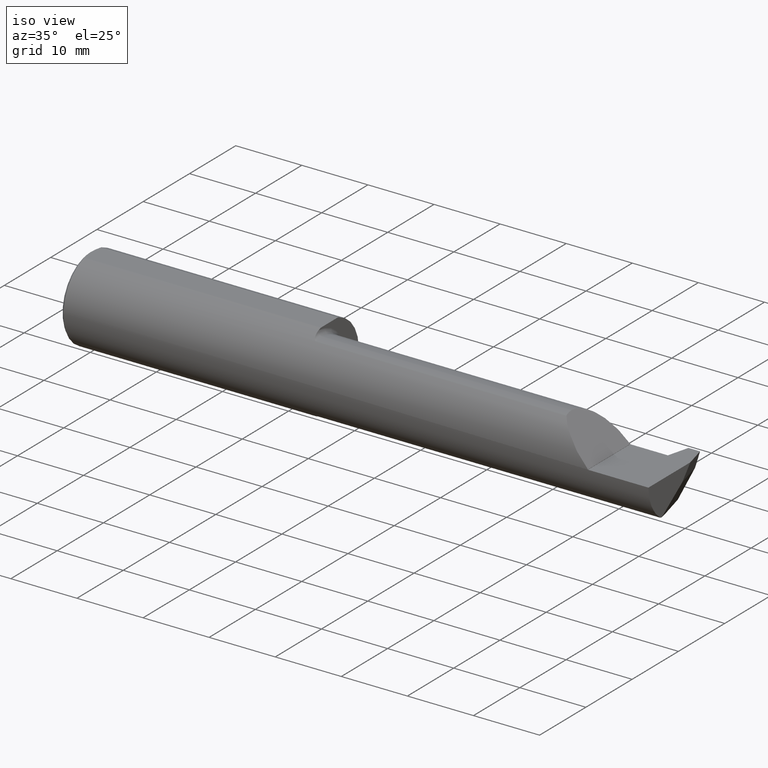
[diagram: clean part render]
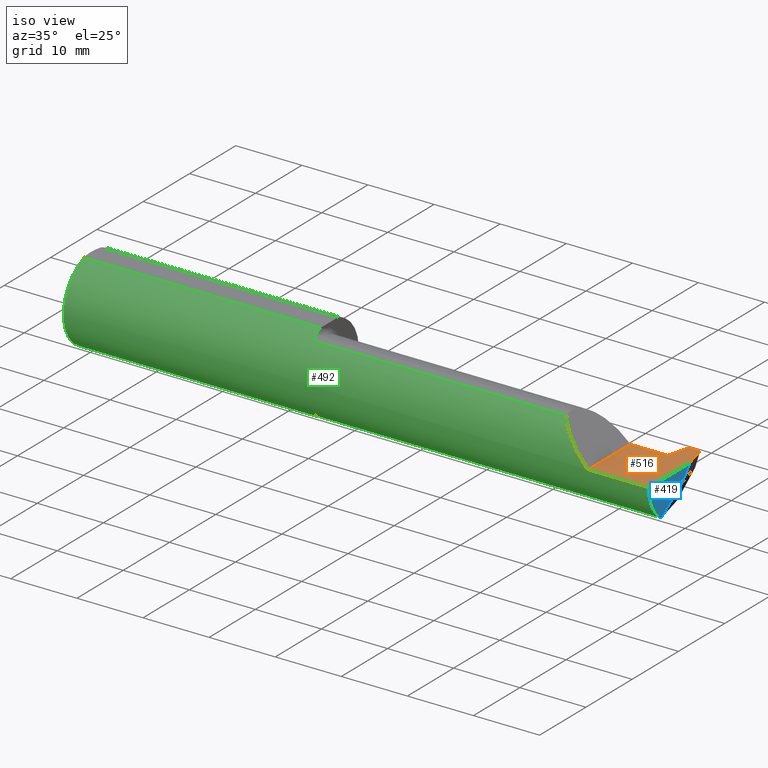
[diagram: same view with three faces highlighted in distinct colors, each labeled with its STEP entity id]
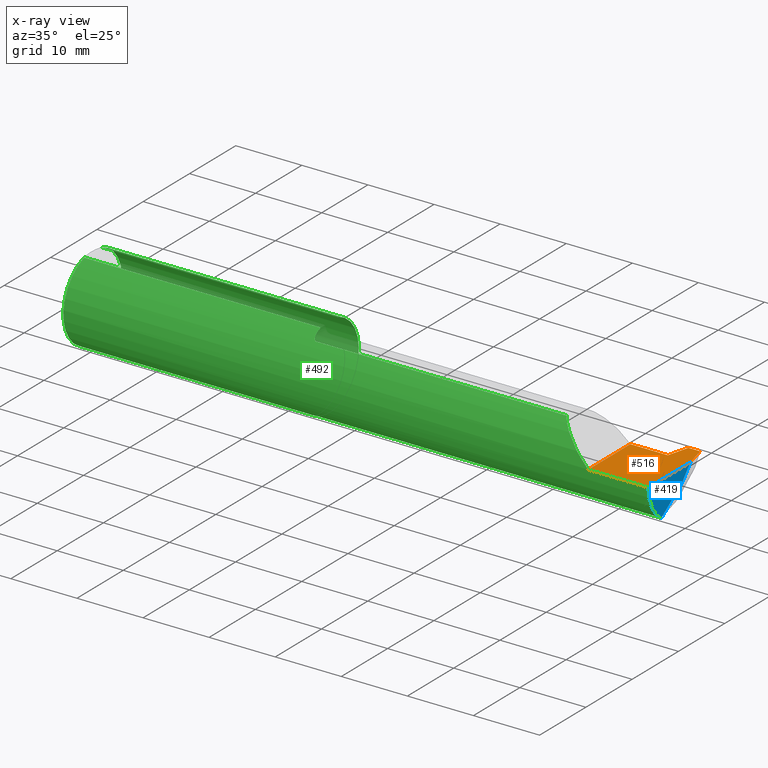
[diagram: x-ray of the same camera — body ghosted, the three highlighted faces saturated]
A machine part, iso view with three faces highlighted in distinct colors.
The next image is the same camera in x-ray (body ghosted, the three faces saturated) — at least one of them is partly hidden behind the body in this view.
Their STEP definitions:

[orange] entity #516 — the highlighted planar face has unit normal (-0, 0, -1).
#12 = PLANE ( 'NONE',  #576 ) ;
#37 = EDGE_LOOP ( 'NONE', ( #648, #475, #241, #307, #202, #245, #60, #941 ) ) ;
#42 = CARTESIAN_POINT ( 'NONE',  ( 3.139999999999999680, 0.2999999999999999889, -6.123031769111886291E-17 ) ) ;
#48 = VECTOR ( 'NONE', #220, 39.37007874015748143 ) ;
#52 = CARTESIAN_POINT ( 'NONE',  ( 3.397000000000001130, 0.2381499999999843742, -6.123031769111886291E-17 ) ) ;
#60 = ORIENTED_EDGE ( 'NONE', *, *, #553, .T. ) ;
#66 = EDGE_CURVE ( 'NONE', #687, #92, #501, .T. ) ;
#69 = DIRECTION ( 'NONE',  ( 1.000000000000000000, -8.537024980200913523E-16, -0.000000000000000000 ) ) ;
#75 = CARTESIAN_POINT ( 'NONE',  ( 1.424999999999999600, 0.1101499999999999979, -6.123031769111886291E-17 ) ) ;
#84 = VECTOR ( 'NONE', #637, 39.37007874015748143 ) ;
#89 = CARTESIAN_POINT ( 'NONE',  ( 3.500000000000000000, 0.2999999999999999889, -6.123031769111886291E-17 ) ) ;
#92 = VERTEX_POINT ( 'NONE', #868 ) ;
#106 = EDGE_CURVE ( 'NONE', #744, #372, #293, .T. ) ;
#129 = EDGE_CURVE ( 'NONE', #791, #252, #708, .T. ) ;
#150 = CARTESIAN_POINT ( 'NONE',  ( 3.139999999999999680, 0.2999999999999999889, -6.123031769111886291E-17 ) ) ;
#176 = CARTESIAN_POINT ( 'NONE',  ( 3.500000000000000000, -0.2498499999999999055, -6.123031769111886291E-17 ) ) ;
#186 = DIRECTION ( 'NONE',  ( -0.000000000000000000, 0.000000000000000000, -1.000000000000000000 ) ) ;
#202 = ORIENTED_EDGE ( 'NONE', *, *, #66, .F. ) ;
#220 = DIRECTION ( 'NONE',  ( 1.000000000000000000, 0.000000000000000000, 0.000000000000000000 ) ) ;
#228 = VERTEX_POINT ( 'NONE', #52 ) ;
#241 = ORIENTED_EDGE ( 'NONE', *, *, #106, .F. ) ;
#245 = ORIENTED_EDGE ( 'NONE', *, *, #717, .F. ) ;
#252 = VERTEX_POINT ( 'NONE', #692 ) ;
#254 = DIRECTION ( 'NONE',  ( -0.000000000000000000, 1.000000000000000000, -0.000000000000000000 ) ) ;
#267 = CARTESIAN_POINT ( 'NONE',  ( 3.139999999999999680, -0.2498499999999999610, -6.123031769111885058E-17 ) ) ;
#288 = CARTESIAN_POINT ( 'NONE',  ( 3.465999999999998860, 0.2381499999999832640, 0.000000000000000000 ) ) ;
#293 = LINE ( 'NONE', #584, #830 ) ;
#307 = ORIENTED_EDGE ( 'NONE', *, *, #363, .F. ) ;
#321 = VECTOR ( 'NONE', #254, 39.37007874015748143 ) ;
#356 = EDGE_CURVE ( 'NONE', #791, #228, #792, .T. ) ;
#363 = EDGE_CURVE ( 'NONE', #92, #744, #796, .T. ) ;
#372 = VERTEX_POINT ( 'NONE', #932 ) ;
#384 = VECTOR ( 'NONE', #931, 39.37007874015748143 ) ;
#393 = DIRECTION ( 'NONE',  ( -1.000000000000000000, 0.000000000000000000, 0.000000000000000000 ) ) ;
#434 = CARTESIAN_POINT ( 'NONE',  ( 3.343896949202450841, 0.1101499999999999840, 0.000000000000000000 ) ) ;
#447 = VECTOR ( 'NONE', #477, 39.37007874015748143 ) ;
#475 = ORIENTED_EDGE ( 'NONE', *, *, #647, .F. ) ;
#477 = DIRECTION ( 'NONE',  ( 0.2503800040544414962, 0.9681476403781077433, -0.000000000000000000 ) ) ;
#497 = CARTESIAN_POINT ( 'NONE',  ( 3.139999999999998792, 0.2381499999999887318, -6.123031769111886291E-17 ) ) ;
#501 = LINE ( 'NONE', #150, #384 ) ;
#516 = ADVANCED_FACE ( 'NONE', ( #896 ), #12, .F. ) ;
#553 = EDGE_CURVE ( 'NONE', #579, #252, #904, .T. ) ;
#558 = LINE ( 'NONE', #766, #447 ) ;
#563 = VECTOR ( 'NONE', #788, 39.37007874015748143 ) ;
#567 = DIRECTION ( 'NONE',  ( 0.2503800040544367778, -0.9681476403781088536, 0.000000000000000000 ) ) ;
#576 = AXIS2_PLACEMENT_3D ( 'NONE', #42, #186, #393 ) ;
#579 = VERTEX_POINT ( 'NONE', #176 ) ;
#584 = CARTESIAN_POINT ( 'NONE',  ( 3.363896949202450859, 0.1101499999999999702, 0.000000000000000000 ) ) ;
#631 = CARTESIAN_POINT ( 'NONE',  ( 3.462896588987724122, 0.2501499999999999835, 0.000000000000000000 ) ) ;
#637 = DIRECTION ( 'NONE',  ( -1.000000000000000000, -0.000000000000000000, -0.000000000000000000 ) ) ;
#647 = EDGE_CURVE ( 'NONE', #372, #228, #558, .T. ) ;
#648 = ORIENTED_EDGE ( 'NONE', *, *, #356, .T. ) ;
#687 = VERTEX_POINT ( 'NONE', #267 ) ;
#692 = CARTESIAN_POINT ( 'NONE',  ( 3.500000000000000000, 0.1066817547734200677, 0.000000000000000000 ) ) ;
#708 = LINE ( 'NONE', #631, #918 ) ;
#717 = EDGE_CURVE ( 'NONE', #579, #687, #921, .T. ) ;
#744 = VERTEX_POINT ( 'NONE', #434 ) ;
#766 = CARTESIAN_POINT ( 'NONE',  ( 3.400103411012275423, 0.2501499999999999835, 0.000000000000000000 ) ) ;
#788 = DIRECTION ( 'NONE',  ( -1.000000000000000000, 1.692248368533555514E-14, 0.000000000000000000 ) ) ;
#791 = VERTEX_POINT ( 'NONE', #288 ) ;
#792 = LINE ( 'NONE', #497, #563 ) ;
#796 = LINE ( 'NONE', #75, #48 ) ;
#830 = VECTOR ( 'NONE', #69, 39.37007874015748143 ) ;
#854 = CARTESIAN_POINT ( 'NONE',  ( 3.500000000000000000, -0.2498499999999999888, -6.123031769111886291E-17 ) ) ;
#868 = CARTESIAN_POINT ( 'NONE',  ( 3.139999999999999680, 0.1101499999999999702, -6.123031769111885058E-17 ) ) ;
#896 = FACE_OUTER_BOUND ( 'NONE', #37, .T. ) ;
#904 = LINE ( 'NONE', #89, #321 ) ;
#918 = VECTOR ( 'NONE', #567, 39.37007874015748854 ) ;
#921 = LINE ( 'NONE', #854, #84 ) ;
#931 = DIRECTION ( 'NONE',  ( -0.000000000000000000, 1.000000000000000000, -0.000000000000000000 ) ) ;
#932 = CARTESIAN_POINT ( 'NONE',  ( 3.363896949202450859, 0.1101499999999999702, 0.000000000000000000 ) ) ;
#941 = ORIENTED_EDGE ( 'NONE', *, *, #129, .F. ) ;

[blue] entity #419 — the highlighted planar face has unit normal (1, 0, 0).
#30 = CIRCLE ( 'NONE', #120, 0.2069999999999999618 ) ;
#34 = AXIS2_PLACEMENT_3D ( 'NONE', #225, #506, #70 ) ;
#49 = DIRECTION ( 'NONE',  ( -0.000000000000000000, 0.8191520442889890230, 0.5735764363510500452 ) ) ;
#56 = DIRECTION ( 'NONE',  ( 0.000000000000000000, -0.6426264403010661930, -0.7661796514042774620 ) ) ;
#65 = FACE_OUTER_BOUND ( 'NONE', #816, .T. ) ;
#70 = DIRECTION ( 'NONE',  ( 0.000000000000000000, 0.000000000000000000, -1.000000000000000000 ) ) ;
#77 = ORIENTED_EDGE ( 'NONE', *, *, #189, .F. ) ;
#89 = CARTESIAN_POINT ( 'NONE',  ( 3.500000000000000000, 0.2999999999999999889, -6.123031769111886291E-17 ) ) ;
#93 = ORIENTED_EDGE ( 'NONE', *, *, #553, .F. ) ;
#115 = CARTESIAN_POINT ( 'NONE',  ( 3.500000000000000000, 0.06262552473439618461, -0.05252660777180581664 ) ) ;
#120 = AXIS2_PLACEMENT_3D ( 'NONE', #415, #561, #916 ) ;
#162 = AXIS2_PLACEMENT_3D ( 'NONE', #404, #925, #911 ) ;
#176 = CARTESIAN_POINT ( 'NONE',  ( 3.500000000000000000, -0.2498499999999999055, -6.123031769111886291E-17 ) ) ;
#189 = EDGE_CURVE ( 'NONE', #252, #908, #850, .T. ) ;
#196 = EDGE_CURVE ( 'NONE', #815, #331, #30, .T. ) ;
#225 = CARTESIAN_POINT ( 'NONE',  ( 3.500000000000000000, 0.000000000000000000, 0.000000000000000000 ) ) ;
#248 = VECTOR ( 'NONE', #49, 39.37007874015748143 ) ;
#252 = VERTEX_POINT ( 'NONE', #692 ) ;
#254 = DIRECTION ( 'NONE',  ( -0.000000000000000000, 1.000000000000000000, -0.000000000000000000 ) ) ;
#317 = LINE ( 'NONE', #401, #248 ) ;
#321 = VECTOR ( 'NONE', #254, 39.37007874015748143 ) ;
#331 = VERTEX_POINT ( 'NONE', #575 ) ;
#358 = PLANE ( 'NONE',  #34 ) ;
#401 = CARTESIAN_POINT ( 'NONE',  ( 3.500000000000000000, 0.05060993510442058502, -0.07227847794072529697 ) ) ;
#404 = CARTESIAN_POINT ( 'NONE',  ( 3.500000000000000000, 0.000000000000000000, 0.000000000000000000 ) ) ;
#415 = CARTESIAN_POINT ( 'NONE',  ( 3.500000000000000000, -0.09685000000000000553, 0.000000000000000000 ) ) ;
#419 = ADVANCED_FACE ( 'NONE', ( #65 ), #358, .T. ) ;
#506 = DIRECTION ( 'NONE',  ( 1.000000000000000000, 0.000000000000000000, 0.000000000000000000 ) ) ;
#536 = ORIENTED_EDGE ( 'NONE', *, *, #626, .T. ) ;
#542 = ORIENTED_EDGE ( 'NONE', *, *, #196, .T. ) ;
#553 = EDGE_CURVE ( 'NONE', #579, #252, #904, .T. ) ;
#561 = DIRECTION ( 'NONE',  ( 1.000000000000000000, -0.000000000000000000, -0.000000000000000000 ) ) ;
#575 = CARTESIAN_POINT ( 'NONE',  ( 3.500000000000000000, -0.1363579360798589379, -0.2031947907469819348 ) ) ;
#579 = VERTEX_POINT ( 'NONE', #176 ) ;
#626 = EDGE_CURVE ( 'NONE', #331, #908, #317, .T. ) ;
#636 = EDGE_CURVE ( 'NONE', #579, #815, #737, .T. ) ;
#656 = CARTESIAN_POINT ( 'NONE',  ( 3.500000000000000000, -0.1494886164171398690, -0.2001953447552895227 ) ) ;
#692 = CARTESIAN_POINT ( 'NONE',  ( 3.500000000000000000, 0.1066817547734200677, 0.000000000000000000 ) ) ;
#725 = VECTOR ( 'NONE', #56, 39.37007874015748854 ) ;
#736 = CARTESIAN_POINT ( 'NONE',  ( 3.500000000000000000, 0.03958245876646967337, -0.07999999999998727573 ) ) ;
#737 = CIRCLE ( 'NONE', #162, 0.2498499999999999888 ) ;
#752 = ORIENTED_EDGE ( 'NONE', *, *, #636, .T. ) ;
#815 = VERTEX_POINT ( 'NONE', #656 ) ;
#816 = EDGE_LOOP ( 'NONE', ( #542, #536, #77, #93, #752 ) ) ;
#850 = LINE ( 'NONE', #115, #725 ) ;
#904 = LINE ( 'NONE', #89, #321 ) ;
#908 = VERTEX_POINT ( 'NONE', #736 ) ;
#911 = DIRECTION ( 'NONE',  ( 0.000000000000000000, 0.000000000000000000, -1.000000000000000000 ) ) ;
#916 = DIRECTION ( 'NONE',  ( 0.000000000000000000, 0.000000000000000000, 1.000000000000000000 ) ) ;
#925 = DIRECTION ( 'NONE',  ( 1.000000000000000000, 0.000000000000000000, 0.000000000000000000 ) ) ;

[green] entity #492 — the highlighted cylindrical surface (partial cylindrical patch) has radius 6.3462 mm, axis along (-1, -0, -0).
#8 = CARTESIAN_POINT ( 'NONE',  ( 1.424999999999999600, 0.07331916529803114702, 0.2388499999999999790 ) ) ;
#22 = AXIS2_PLACEMENT_3D ( 'NONE', #920, #476, #407 ) ;
#31 = EDGE_CURVE ( 'NONE', #554, #751, #410, .T. ) ;
#43 = CARTESIAN_POINT ( 'NONE',  ( 1.425056834358316094, -0.09685000000000180964, 0.2303152187763536640 ) ) ;
#55 = DIRECTION ( 'NONE',  ( -1.000000000000000000, -0.000000000000000000, -0.000000000000000000 ) ) ;
#78 = CARTESIAN_POINT ( 'NONE',  ( 1.425056834358315649, -0.09684999999998002151, -0.2303152187763627956 ) ) ;
#82 = DIRECTION ( 'NONE',  ( 1.000000000000000000, -0.000000000000000000, -0.000000000000000000 ) ) ;
#84 = VECTOR ( 'NONE', #637, 39.37007874015748143 ) ;
#88 = DIRECTION ( 'NONE',  ( 0.000000000000000000, 0.000000000000000000, -1.000000000000000000 ) ) ;
#90 = CARTESIAN_POINT ( 'NONE',  ( 1.424999999999999600, -0.09282883324728960495, 0.2319651487140835522 ) ) ;
#96 = CARTESIAN_POINT ( 'NONE',  ( 3.139999999999999680, -0.2498463527850666721, 0.001349999999998470696 ) ) ;
#109 = CARTESIAN_POINT ( 'NONE',  ( 1.426742824673065346, -0.1177739016850215953, -0.2206342839570611114 ) ) ;
#112 = CARTESIAN_POINT ( 'NONE',  ( 1.425362334957245736, -0.1076058103047661529, 0.2257922861036847917 ) ) ;
#117 = CARTESIAN_POINT ( 'NONE',  ( 1.438098364138955976, -0.1431579111149089700, -0.2047855815810832314 ) ) ;
#123 = LINE ( 'NONE', #694, #333 ) ;
#128 = CARTESIAN_POINT ( 'NONE',  ( 1.447020367144870701, -0.1494886164171398968, 0.2001953447552894949 ) ) ;
#145 = CARTESIAN_POINT ( 'NONE',  ( 1.449999999999999512, -0.1494886164171398968, 0.2001953447552894949 ) ) ;
#151 = LINE ( 'NONE', #881, #464 ) ;
#153 = ORIENTED_EDGE ( 'NONE', *, *, #689, .T. ) ;
#162 = AXIS2_PLACEMENT_3D ( 'NONE', #404, #925, #911 ) ;
#169 = CARTESIAN_POINT ( 'NONE',  ( 2.941154655244710092, -0.1494886164171397303, 0.2001953447552895782 ) ) ;
#170 = EDGE_CURVE ( 'NONE', #368, #913, #428, .T. ) ;
#176 = CARTESIAN_POINT ( 'NONE',  ( 3.500000000000000000, -0.2498499999999999055, -6.123031769111886291E-17 ) ) ;
#180 = ORIENTED_EDGE ( 'NONE', *, *, #170, .T. ) ;
#181 = AXIS2_PLACEMENT_3D ( 'NONE', #332, #639, #857 ) ;
#187 = CARTESIAN_POINT ( 'NONE',  ( 1.439875278575876827, -0.1451430425960587856, 0.2033773245914853312 ) ) ;
#192 = CARTESIAN_POINT ( 'NONE',  ( 1.433603512678596648, -0.1369436784278610930, -0.2090374349053132075 ) ) ;
#194 = CARTESIAN_POINT ( 'NONE',  ( 1.438126455499453282, -0.1431912086441300691, 0.2047622941394796059 ) ) ;
#214 = B_SPLINE_CURVE_WITH_KNOTS ( 'NONE', 3,
 ( #271, #847, #109, #347, #192, #117, #486, #628, #398, #917 ),
 .UNSPECIFIED., .F., .F.,
 ( 4, 2, 2, 2, 4 ),
 ( 0.0001090155944137358965, 0.0009865223614607986687, 0.001425275744984329370, 0.001644652436746094721, 0.001864029128507859855 ),
 .UNSPECIFIED. ) ;
#223 = AXIS2_PLACEMENT_3D ( 'NONE', #367, #355, #643 ) ;
#226 = CARTESIAN_POINT ( 'NONE',  ( 1.424999999999999600, 0.000000000000000000, 0.000000000000000000 ) ) ;
#237 = ORIENTED_EDGE ( 'NONE', *, *, #717, .T. ) ;
#239 = EDGE_CURVE ( 'NONE', #756, #319, #482, .T. ) ;
#240 = CARTESIAN_POINT ( 'NONE',  ( 1.424999999999999600, -0.09282883324728960495, -0.2319651487140835522 ) ) ;
#267 = CARTESIAN_POINT ( 'NONE',  ( 3.139999999999999680, -0.2498499999999999610, -6.123031769111885058E-17 ) ) ;
#271 = CARTESIAN_POINT ( 'NONE',  ( 1.425056834358315649, -0.09684999999998002151, -0.2303152187763627956 ) ) ;
#275 = CARTESIAN_POINT ( 'NONE',  ( 1.433621117101776532, -0.1369789607150102007, 0.2090142917562188285 ) ) ;
#283 = EDGE_LOOP ( 'NONE', ( #326, #599, #237, #786, #674, #898, #392, #399, #327, #455, #615, #180, #153, #801, #883, #418 ) ) ;
#299 = CARTESIAN_POINT ( 'NONE',  ( 1.425056834358316094, -0.09685000000000180964, 0.2303152187763536640 ) ) ;
#305 = CARTESIAN_POINT ( 'NONE',  ( 1.425056834358316094, -0.09685000000000180964, 0.2303152187763536640 ) ) ;
#309 = VERTEX_POINT ( 'NONE', #299 ) ;
#312 = EDGE_CURVE ( 'NONE', #815, #653, #151, .T. ) ;
#319 = VERTEX_POINT ( 'NONE', #8 ) ;
#326 = ORIENTED_EDGE ( 'NONE', *, *, #312, .F. ) ;
#327 = ORIENTED_EDGE ( 'NONE', *, *, #919, .F. ) ;
#332 = CARTESIAN_POINT ( 'NONE',  ( 1.424999999999999600, 0.000000000000000000, 0.000000000000000000 ) ) ;
#333 = VECTOR ( 'NONE', #705, 39.37007874015748143 ) ;
#341 = CARTESIAN_POINT ( 'NONE',  ( 1.426763007424506791, -0.1178923264691400657, 0.2205715275921999452 ) ) ;
#347 = CARTESIAN_POINT ( 'NONE',  ( 1.431527936142122925, -0.1322095316791234987, -0.2120777013314375792 ) ) ;
#350 = AXIS2_PLACEMENT_3D ( 'NONE', #226, #879, #597 ) ;
#355 = DIRECTION ( 'NONE',  ( -1.000000000000000000, -0.000000000000000000, -0.000000000000000000 ) ) ;
#357 = VERTEX_POINT ( 'NONE', #432 ) ;
#367 = CARTESIAN_POINT ( 'NONE',  ( 3.139999999999999680, 0.000000000000000000, 0.000000000000000000 ) ) ;
#368 = VERTEX_POINT ( 'NONE', #802 ) ;
#369 = CARTESIAN_POINT ( 'NONE',  ( 2.988914555052664124, -0.2134487348307804178, 0.1524354449473349915 ) ) ;
#385 = CARTESIAN_POINT ( 'NONE',  ( 3.500000000000000000, 0.000000000000000000, 0.000000000000000000 ) ) ;
#390 = CIRCLE ( 'NONE', #223, 0.2498499999999999888 ) ;
#392 = ORIENTED_EDGE ( 'NONE', *, *, #649, .T. ) ;
#398 = CARTESIAN_POINT ( 'NONE',  ( 1.447000154949638961, -0.1494886164171399523, -0.2001953447552893561 ) ) ;
#399 = ORIENTED_EDGE ( 'NONE', *, *, #940, .T. ) ;
#404 = CARTESIAN_POINT ( 'NONE',  ( 3.500000000000000000, 0.000000000000000000, 0.000000000000000000 ) ) ;
#407 = DIRECTION ( 'NONE',  ( 0.000000000000000000, 0.000000000000000000, -1.000000000000000000 ) ) ;
#410 = LINE ( 'NONE', #701, #749 ) ;
#417 = B_SPLINE_CURVE_WITH_KNOTS ( 'NONE', 3,
 ( #305, #886, #450, #90 ),
 .UNSPECIFIED., .F., .F.,
 ( 4, 4 ),
 ( 0.001785983475866871400, 0.001896829427359320941 ),
 .UNSPECIFIED. ) ;
#418 = ORIENTED_EDGE ( 'NONE', *, *, #686, .T. ) ;
#426 = B_SPLINE_CURVE_WITH_KNOTS ( 'NONE', 3,
 ( #240, #524, #818, #673 ),
 .UNSPECIFIED., .F., .F.,
 ( 4, 4 ),
 ( 0.000000000000000000, 0.0001090155944137358965 ),
 .UNSPECIFIED. ) ;
#428 = CIRCLE ( 'NONE', #22, 0.2498499999999999888 ) ;
#431 = VERTEX_POINT ( 'NONE', #78 ) ;
#432 = CARTESIAN_POINT ( 'NONE',  ( 2.941154655244710092, -0.1494886164171397303, 0.2001953447552895782 ) ) ;
#435 = EDGE_CURVE ( 'NONE', #605, #357, #935, .T. ) ;
#450 = CARTESIAN_POINT ( 'NONE',  ( 1.424999999999999600, -0.09417450869096335997, 0.2314266303976112160 ) ) ;
#455 = ORIENTED_EDGE ( 'NONE', *, *, #31, .T. ) ;
#464 = VECTOR ( 'NONE', #645, 39.37007874015748143 ) ;
#467 = EDGE_CURVE ( 'NONE', #751, #368, #608, .T. ) ;
#474 = CARTESIAN_POINT ( 'NONE',  ( 1.431579487302563347, -0.1323357243723022603, 0.2119991103425289680 ) ) ;
#476 = DIRECTION ( 'NONE',  ( 1.000000000000000000, -0.000000000000000000, -0.000000000000000000 ) ) ;
#481 = DIRECTION ( 'NONE',  ( 1.000000000000000000, 0.000000000000000000, 0.000000000000000000 ) ) ;
#482 = CIRCLE ( 'NONE', #181, 0.2498499999999999888 ) ;
#486 = CARTESIAN_POINT ( 'NONE',  ( 1.439804601073711998, -0.1450778299404785754, -0.2034240810360764540 ) ) ;
#492 = ADVANCED_FACE ( 'NONE', ( #664 ), #600, .T. ) ;
#500 = EDGE_CURVE ( 'NONE', #756, #431, #426, .T. ) ;
#509 = CARTESIAN_POINT ( 'NONE',  ( 3.139999999999999680, -0.2498463527850666721, 0.001349999999998470696 ) ) ;
#521 = CARTESIAN_POINT ( 'NONE',  ( 0.01500000000000024925, 0.07331916529803100824, 0.2388500000000000345 ) ) ;
#524 = CARTESIAN_POINT ( 'NONE',  ( 1.424999999999999600, -0.09417762792835078500, -0.2314253821274770972 ) ) ;
#554 = VERTEX_POINT ( 'NONE', #841 ) ;
#556 = LINE ( 'NONE', #851, #865 ) ;
#562 = CARTESIAN_POINT ( 'NONE',  ( 1.449999999999999512, -0.1494886164171398968, 0.2001953447552894949 ) ) ;
#579 = VERTEX_POINT ( 'NONE', #176 ) ;
#597 = DIRECTION ( 'NONE',  ( 0.000000000000000000, 0.000000000000000000, -1.000000000000000000 ) ) ;
#599 = ORIENTED_EDGE ( 'NONE', *, *, #636, .F. ) ;
#600 = CYLINDRICAL_SURFACE ( 'NONE', #774, 0.2498499999999999888 ) ;
#605 = VERTEX_POINT ( 'NONE', #96 ) ;
#606 = DIRECTION ( 'NONE',  ( 0.000000000000000000, 0.000000000000000000, 1.000000000000000000 ) ) ;
#608 = CIRCLE ( 'NONE', #900, 0.2498499999999999888 ) ;
#615 = ORIENTED_EDGE ( 'NONE', *, *, #467, .T. ) ;
#625 = CARTESIAN_POINT ( 'NONE',  ( 1.449999999999999512, -0.1494886164171398968, -0.2001953447552894949 ) ) ;
#628 = CARTESIAN_POINT ( 'NONE',  ( 1.444219481832198060, -0.1482797491967531023, -0.2011020871690758216 ) ) ;
#636 = EDGE_CURVE ( 'NONE', #579, #815, #737, .T. ) ;
#637 = DIRECTION ( 'NONE',  ( -1.000000000000000000, -0.000000000000000000, -0.000000000000000000 ) ) ;
#639 = DIRECTION ( 'NONE',  ( 1.000000000000000000, 0.000000000000000000, 0.000000000000000000 ) ) ;
#643 = DIRECTION ( 'NONE',  ( 0.000000000000000000, 0.000000000000000000, 1.000000000000000000 ) ) ;
#645 = DIRECTION ( 'NONE',  ( -1.000000000000000000, -0.000000000000000000, -0.000000000000000000 ) ) ;
#649 = EDGE_CURVE ( 'NONE', #834, #309, #813, .T. ) ;
#653 = VERTEX_POINT ( 'NONE', #625 ) ;
#656 = CARTESIAN_POINT ( 'NONE',  ( 3.500000000000000000, -0.1494886164171398690, -0.2001953447552895227 ) ) ;
#661 = EDGE_CURVE ( 'NONE', #834, #357, #123, .T. ) ;
#664 = FACE_OUTER_BOUND ( 'NONE', #283, .T. ) ;
#672 = VERTEX_POINT ( 'NONE', #858 ) ;
#673 = CARTESIAN_POINT ( 'NONE',  ( 1.425056834358315649, -0.09684999999998002151, -0.2303152187763627956 ) ) ;
#674 = ORIENTED_EDGE ( 'NONE', *, *, #435, .T. ) ;
#686 = EDGE_CURVE ( 'NONE', #431, #653, #214, .T. ) ;
#687 = VERTEX_POINT ( 'NONE', #267 ) ;
#689 = EDGE_CURVE ( 'NONE', #913, #319, #556, .T. ) ;
#690 = CARTESIAN_POINT ( 'NONE',  ( 1.444274813964108395, -0.1483055201436095649, 0.2010828477691846972 ) ) ;
#694 = CARTESIAN_POINT ( 'NONE',  ( 2.392499999999999627, -0.1494886164171398968, 0.2001953447552894949 ) ) ;
#701 = CARTESIAN_POINT ( 'NONE',  ( 3.500000000000000000, -0.07331916529803116089, 0.2388499999999999790 ) ) ;
#705 = DIRECTION ( 'NONE',  ( 1.000000000000000000, 0.000000000000000000, 0.000000000000000000 ) ) ;
#717 = EDGE_CURVE ( 'NONE', #579, #687, #921, .T. ) ;
#723 = CARTESIAN_POINT ( 'NONE',  ( 0.01500000000000021108, -0.07331916529803102212, 0.2388499999999999790 ) ) ;
#728 = CARTESIAN_POINT ( 'NONE',  ( 1.424999999999999600, -0.09282883324728960495, -0.2319651487140835522 ) ) ;
#731 = CARTESIAN_POINT ( 'NONE',  ( 3.060176953520660437, -0.2494150432560470754, 0.08117304647933920592 ) ) ;
#737 = CIRCLE ( 'NONE', #162, 0.2498499999999999888 ) ;
#739 = CARTESIAN_POINT ( 'NONE',  ( 0.01500000000000024925, 0.000000000000000000, 0.000000000000000000 ) ) ;
#749 = VECTOR ( 'NONE', #55, 39.37007874015748143 ) ;
#751 = VERTEX_POINT ( 'NONE', #723 ) ;
#756 = VERTEX_POINT ( 'NONE', #728 ) ;
#774 = AXIS2_PLACEMENT_3D ( 'NONE', #385, #810, #606 ) ;
#786 = ORIENTED_EDGE ( 'NONE', *, *, #789, .T. ) ;
#789 = EDGE_CURVE ( 'NONE', #687, #605, #390, .T. ) ;
#801 = ORIENTED_EDGE ( 'NONE', *, *, #239, .F. ) ;
#802 = CARTESIAN_POINT ( 'NONE',  ( 0.01500000000000024925, 0.000000000000000000, -0.2498499999999999888 ) ) ;
#810 = DIRECTION ( 'NONE',  ( -1.000000000000000000, -0.000000000000000000, -0.000000000000000000 ) ) ;
#813 = B_SPLINE_CURVE_WITH_KNOTS ( 'NONE', 3,
 ( #562, #128, #690, #187, #194, #275, #474, #341, #112, #43 ),
 .UNSPECIFIED., .F., .F.,
 ( 4, 2, 2, 2, 4 ),
 ( 0.000000000000000000, 0.0002232479344833592232, 0.0004464958689667184464, 0.0008929917379334357001, 0.001785983475866871400 ),
 .UNSPECIFIED. ) ;
#815 = VERTEX_POINT ( 'NONE', #656 ) ;
#818 = CARTESIAN_POINT ( 'NONE',  ( 1.425019000533664926, -0.09551797825495937644, -0.2308753480925707646 ) ) ;
#834 = VERTEX_POINT ( 'NONE', #145 ) ;
#841 = CARTESIAN_POINT ( 'NONE',  ( 1.424999999999999600, -0.07331916529803114702, 0.2388499999999999790 ) ) ;
#842 = CIRCLE ( 'NONE', #350, 0.2498499999999999888 ) ;
#847 = CARTESIAN_POINT ( 'NONE',  ( 1.425361372780716840, -0.1075719347965366085, -0.2258065311153257537 ) ) ;
#851 = CARTESIAN_POINT ( 'NONE',  ( 3.500000000000000000, 0.07331916529803116089, 0.2388499999999999790 ) ) ;
#854 = CARTESIAN_POINT ( 'NONE',  ( 3.500000000000000000, -0.2498499999999999888, -6.123031769111886291E-17 ) ) ;
#857 = DIRECTION ( 'NONE',  ( 0.000000000000000000, 0.000000000000000000, -1.000000000000000000 ) ) ;
#858 = CARTESIAN_POINT ( 'NONE',  ( 1.424999999999999600, -0.09282883324728960495, 0.2319651487140835522 ) ) ;
#865 = VECTOR ( 'NONE', #481, 39.37007874015748143 ) ;
#879 = DIRECTION ( 'NONE',  ( 1.000000000000000000, 0.000000000000000000, 0.000000000000000000 ) ) ;
#881 = CARTESIAN_POINT ( 'NONE',  ( 2.392499999999999627, -0.1494886164171398968, -0.2001953447552894949 ) ) ;
#883 = ORIENTED_EDGE ( 'NONE', *, *, #500, .T. ) ;
#886 = CARTESIAN_POINT ( 'NONE',  ( 1.425018912949717054, -0.09551489467185736437, 0.2308766447720728143 ) ) ;
#898 = ORIENTED_EDGE ( 'NONE', *, *, #661, .F. ) ;
#900 = AXIS2_PLACEMENT_3D ( 'NONE', #739, #82, #88 ) ;
#911 = DIRECTION ( 'NONE',  ( 0.000000000000000000, 0.000000000000000000, -1.000000000000000000 ) ) ;
#913 = VERTEX_POINT ( 'NONE', #521 ) ;
#917 = CARTESIAN_POINT ( 'NONE',  ( 1.449999999999999512, -0.1494886164171398968, -0.2001953447552894949 ) ) ;
#919 = EDGE_CURVE ( 'NONE', #554, #672, #842, .T. ) ;
#920 = CARTESIAN_POINT ( 'NONE',  ( 0.01500000000000024925, 0.000000000000000000, 0.000000000000000000 ) ) ;
#921 = LINE ( 'NONE', #854, #84 ) ;
#925 = DIRECTION ( 'NONE',  ( 1.000000000000000000, 0.000000000000000000, 0.000000000000000000 ) ) ;
#935 =( BOUNDED_CURVE ( )  B_SPLINE_CURVE ( 3, ( #509, #731, #369, #169 ),
 .UNSPECIFIED., .F., .F. ) 
 B_SPLINE_CURVE_WITH_KNOTS ( ( 4, 4 ),
 ( 4.717792248621492490, 5.641790718733345145 ),
 .UNSPECIFIED. ) 
 CURVE ( )  GEOMETRIC_REPRESENTATION_ITEM ( )  RATIONAL_B_SPLINE_CURVE ( ( 1.000000000000000000, 0.9301087671763458298, 0.9301087671763458298, 1.000000000000000000 ) ) 
 REPRESENTATION_ITEM ( '' )  );
#940 = EDGE_CURVE ( 'NONE', #309, #672, #417, .T. ) ;